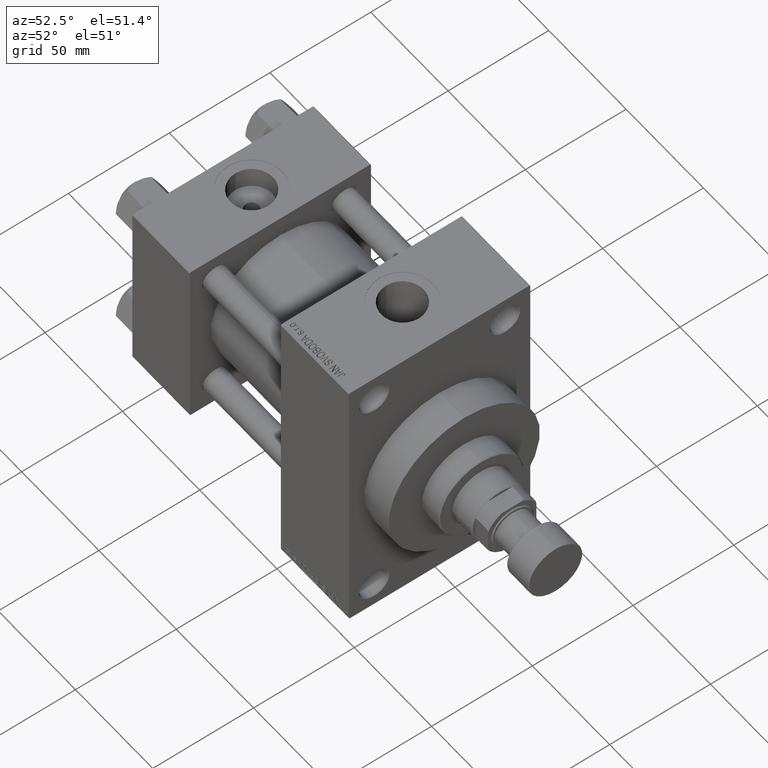
[diagram: clean part render]
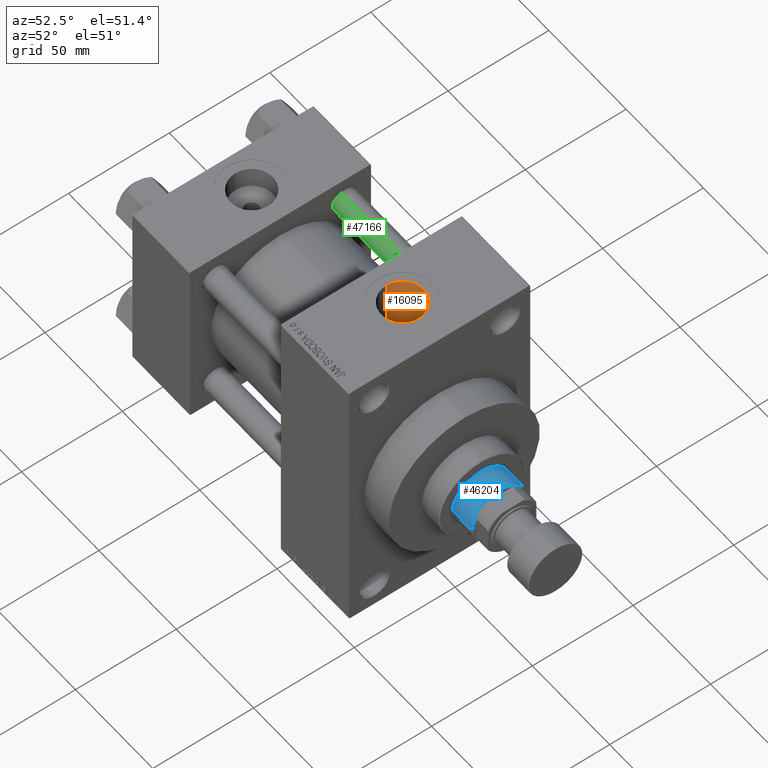
[diagram: same view with three faces highlighted in distinct colors, each labeled with its STEP entity id]
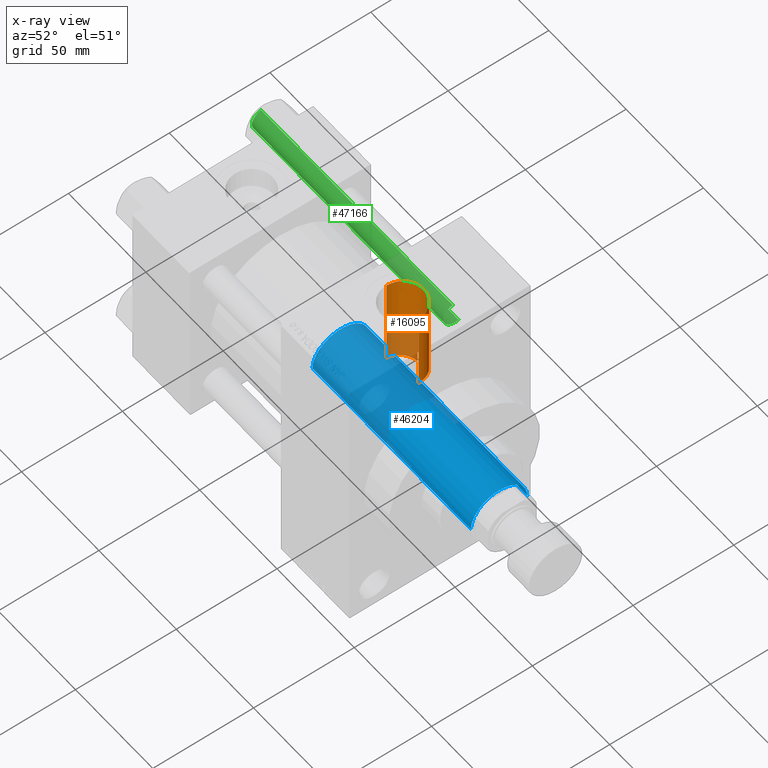
[diagram: x-ray of the same camera — body ghosted, the three highlighted faces saturated]
A machine part, auxiliary view with three faces highlighted in distinct colors.
The next image is the same camera in x-ray (body ghosted, the three faces saturated) — at least one of them is partly hidden behind the body in this view.
Their STEP definitions:

[orange] entity #16095 — the highlighted cylindrical surface (edge-blend (fillet) strip) has radius 10.48 mm, axis along (0, 0, -1).
#855 = VERTEX_POINT ( 'NONE', #46397 ) ;
#899 = CARTESIAN_POINT ( 'NONE',  ( 118.0591099703892723, 10.28399729863217438, 28.18233838691855198 ) ) ;
#1820 = DIRECTION ( 'NONE',  ( 0.000000000000000000, 0.000000000000000000, -1.000000000000000000 ) ) ;
#2198 = VECTOR ( 'NONE', #14858, 1000.000000000000000 ) ;
#2329 = ORIENTED_EDGE ( 'NONE', *, *, #40374, .F. ) ;
#2389 = CARTESIAN_POINT ( 'NONE',  ( 108.4055094269453008, 7.226927296489276564, 23.93349527817645139 ) ) ;
#2634 = CARTESIAN_POINT ( 'NONE',  ( 106.5534232013268507, 4.546234407114488896, 24.58442359052068227 ) ) ;
#3944 = CARTESIAN_POINT ( 'NONE',  ( 126.3830360161806396, 1.648097371455661930, 29.96570276014226408 ) ) ;
#4190 = CARTESIAN_POINT ( 'NONE',  ( 115.5797722390586841, 10.47976684723566265, 28.11006442857998877 ) ) ;
#4447 = CARTESIAN_POINT ( 'NONE',  ( 118.4620306645708467, 10.19511646566076912, 28.21478357702914863 ) ) ;
#4868 = FACE_OUTER_BOUND ( 'NONE', #9265, .T. ) ;
#5247 = VERTEX_POINT ( 'NONE', #38171 ) ;
#5937 = VERTEX_POINT ( 'NONE', #45205 ) ;
#8348 = CIRCLE ( 'NONE', #14759, 10.48000000000000398 ) ;
#8576 = CARTESIAN_POINT ( 'NONE',  ( 105.5199999999999960, 3.061579607129328475E-15, 25.00000000000000000 ) ) ;
#8883 = CYLINDRICAL_SURFACE ( 'NONE', #44569, 10.48000000000000398 ) ;
#9018 = ORIENTED_EDGE ( 'NONE', *, *, #9237, .F. ) ;
#9237 = EDGE_CURVE ( 'NONE', #33973, #37366, #8348, .T. ) ;
#9265 = EDGE_LOOP ( 'NONE', ( #2329, #9018, #17046, #31692, #20513, #19652 ) ) ;
#9309 = CARTESIAN_POINT ( 'NONE',  ( 116.0000000000000000, -1.094803260394251466E-14, 70.79999999999996874 ) ) ;
#9694 = CARTESIAN_POINT ( 'NONE',  ( 106.4364837241044199, 4.294796546401079773, 24.62967549968344017 ) ) ;
#10001 = VERTEX_POINT ( 'NONE', #8576 ) ;
#11478 = CARTESIAN_POINT ( 'NONE',  ( 121.5055286267077435, 8.955395143035861594, 28.63663715154386225 ) ) ;
#11725 = CARTESIAN_POINT ( 'NONE',  ( 123.4361280113390649, 7.429595108124754432, 29.07242469717889222 ) ) ;
#12143 = DIRECTION ( 'NONE',  ( 0.000000000000000000, 0.000000000000000000, -1.000000000000000000 ) ) ;
#14564 = CARTESIAN_POINT ( 'NONE',  ( 112.7400000000000375, 9.960060240781677621, 93.79999999999996874 ) ) ;
#14759 = AXIS2_PLACEMENT_3D ( 'NONE', #9309, #26314, #37909 ) ;
#14858 = DIRECTION ( 'NONE',  ( 0.000000000000000000, 0.000000000000000000, -1.000000000000000000 ) ) ;
#14942 = VECTOR ( 'NONE', #33208, 1000.000000000000000 ) ;
#15246 = CARTESIAN_POINT ( 'NONE',  ( 116.8327597629122323, 10.45516439159307254, 28.11920784241486970 ) ) ;
#15738 = CARTESIAN_POINT ( 'NONE',  ( 114.3405906774044922, 10.38092379675460464, 28.14678245432905257 ) ) ;
#16095 = ADVANCED_FACE ( 'NONE', ( #4868 ), #8883, .F. ) ;
#16958 = CARTESIAN_POINT ( 'NONE',  ( 111.7145022253386344, 9.579591377203493963, 23.09339075464095714 ) ) ;
#17046 = ORIENTED_EDGE ( 'NONE', *, *, #20377, .T. ) ;
#17450 = CARTESIAN_POINT ( 'NONE',  ( 107.6967244621315274, 6.399965487557570221, 24.16798554837829016 ) ) ;
#18248 = EDGE_CURVE ( 'NONE', #5937, #855, #29932, .T. ) ;
#19014 = CARTESIAN_POINT ( 'NONE',  ( 125.9683417730960713, 3.260593319422029346, 29.82480881445975385 ) ) ;
#19652 = ORIENTED_EDGE ( 'NONE', *, *, #35721, .T. ) ;
#19765 = CARTESIAN_POINT ( 'NONE',  ( 113.5317014108506442, 10.21918985817145753, 28.20715556589740558 ) ) ;
#20011 = CARTESIAN_POINT ( 'NONE',  ( 117.2444743077375477, 10.41402026144617921, 28.13455134504983590 ) ) ;
#20195 = DIRECTION ( 'NONE',  ( -1.000000000000000000, 0.000000000000000000, 0.000000000000000000 ) ) ;
#20377 = EDGE_CURVE ( 'NONE', #33973, #10001, #30468, .T. ) ;
#20513 = ORIENTED_EDGE ( 'NONE', *, *, #18248, .F. ) ;
#20754 = CARTESIAN_POINT ( 'NONE',  ( 110.2707649538851058, 8.791964167062978674, 23.40546361773868611 ) ) ;
#21000 = CARTESIAN_POINT ( 'NONE',  ( 107.2168952918916318, 5.742964677340212098, 24.33562597405337158 ) ) ;
#21246 = CARTESIAN_POINT ( 'NONE',  ( 106.9306559456026946, 5.280155339913236823, 24.44112276137722262 ) ) ;
#21731 = CARTESIAN_POINT ( 'NONE',  ( 106.2242790990456740, 3.787004330726786439, 24.71284667523638845 ) ) ;
#21884 = EDGE_CURVE ( 'NONE', #10001, #855, #33182, .T. ) ;
#22063 = CARTESIAN_POINT ( 'NONE',  ( 105.7407124806769758, 2.210995156578866805, 24.90815361058044530 ) ) ;
#23037 = CARTESIAN_POINT ( 'NONE',  ( 112.7400000000000375, 9.960060240781677621, 28.29836037653065262 ) ) ;
#26314 = DIRECTION ( 'NONE',  ( -0.000000000000000000, -0.000000000000000000, -1.000000000000000000 ) ) ;
#26834 = CARTESIAN_POINT ( 'NONE',  ( 124.2306735501210682, 6.500194899328790576, 29.28905352826703279 ) ) ;
#26863 = CARTESIAN_POINT ( 'NONE',  ( 105.5199999999999960, 3.061579607129328475E-15, 25.00000000000000000 ) ) ;
#27081 = CARTESIAN_POINT ( 'NONE',  ( 125.5177326829066118, 4.405705906582507936, 29.67702246902073782 ) ) ;
#27567 = CARTESIAN_POINT ( 'NONE',  ( 122.8380018292597526, 7.984464829307546196, 28.92238598225677748 ) ) ;
#29887 = CARTESIAN_POINT ( 'NONE',  ( 105.8714792709155716, 2.746840284963956158, 24.85421337676989140 ) ) ;
#29932 = LINE ( 'NONE', #14564, #14942 ) ;
#30468 = LINE ( 'NONE', #41031, #2198 ) ;
#30615 = CARTESIAN_POINT ( 'NONE',  ( 124.9382592368621943, 5.487081182378864774, 29.49600040171357307 ) ) ;
#30850 = CARTESIAN_POINT ( 'NONE',  ( 124.4793501314061359, 6.172613663302646714, 29.36019312204046727 ) ) ;
#30880 = CARTESIAN_POINT ( 'NONE',  ( 105.5748675089374160, 1.106412475567419396, 24.97704123077414096 ) ) ;
#31061 = VECTOR ( 'NONE', #12143, 1000.000000000000000 ) ;
#31590 = CARTESIAN_POINT ( 'NONE',  ( 126.0901672462784688, 2.862209008249557929, 29.86591119163860952 ) ) ;
#31692 = ORIENTED_EDGE ( 'NONE', *, *, #21884, .T. ) ;
#32826 = CARTESIAN_POINT ( 'NONE',  ( 108.2191150461718792, 7.025825097695094890, 23.99341311413245847 ) ) ;
#33182 = B_SPLINE_CURVE_WITH_KNOTS ( 'NONE', 3,
 ( #26863, #45471, #49749, #30880, #41200, #22063, #29887, #45216, #21731, #9694, #2634, #21246, #21000, #17450, #44138, #32826, #2389, #40128, #47657, #20754, #36856, #16958, #48152, #48664 ),
 .UNSPECIFIED., .F., .F.,
 ( 4, 2, 2, 2, 2, 2, 2, 2, 2, 2, 2, 4 ),
 ( 0.03315293716445248673, 0.03398143856659530115, 0.03480993996873811558, 0.03646694277302374443, 0.03729544417516655191, 0.03812394557730936634, 0.03978094838159499519, 0.04060944978373780961, 0.04143795118588062404, 0.04309495399016624595, 0.04475195679445187480, 0.04640895959873749671 ),
 .UNSPECIFIED. ) ;
#33208 = DIRECTION ( 'NONE',  ( 0.000000000000000000, 0.000000000000000000, -1.000000000000000000 ) ) ;
#33270 = CARTESIAN_POINT ( 'NONE',  ( 126.4800000000000040, -9.664602758436087591E-15, 70.79999999999996874 ) ) ;
#33973 = VERTEX_POINT ( 'NONE', #37886 ) ;
#34792 = LINE ( 'NONE', #46102, #31061 ) ;
#35129 = CARTESIAN_POINT ( 'NONE',  ( 120.7931686517055709, 9.355930520045824039, 28.50576369173083435 ) ) ;
#35721 = EDGE_CURVE ( 'NONE', #5937, #5247, #36841, .T. ) ;
#36841 = B_SPLINE_CURVE_WITH_KNOTS ( 'NONE', 3,
 ( #23037, #19765, #15738, #4190, #38916, #15246, #20011, #899, #4447, #46190, #45941, #35129, #11478, #27567, #11725, #26834, #30850, #30615, #42915, #27081, #39393, #19014, #31590, #3944, #42422, #46932 ),
 .UNSPECIFIED., .F., .F.,
 ( 4, 2, 2, 2, 2, 2, 2, 2, 2, 2, 2, 2, 4 ),
 ( 0.000000000000000000, 0.002478973229448049737, 0.003718459844172074605, 0.004957946458896099473, 0.006197433073620124341, 0.007436919688344149210, 0.009915892917792157313, 0.01239486614724016542, 0.01363435276196416600, 0.01487383937668817005, 0.01611332599141217237, 0.01735281260613617815, 0.01983178583558416891 ),
 .UNSPECIFIED. ) ;
#36856 = CARTESIAN_POINT ( 'NONE',  ( 110.7334908428740476, 9.077331294423922614, 23.29539276492242905 ) ) ;
#37366 = VERTEX_POINT ( 'NONE', #33270 ) ;
#37886 = CARTESIAN_POINT ( 'NONE',  ( 105.5199999999999960, -1.094803260394251466E-14, 70.79999999999996874 ) ) ;
#37909 = DIRECTION ( 'NONE',  ( 1.000000000000000000, 0.000000000000000000, 0.000000000000000000 ) ) ;
#38171 = CARTESIAN_POINT ( 'NONE',  ( 126.4800000000000040, 3.673940397618681979E-15, 30.00000000000000000 ) ) ;
#38916 = CARTESIAN_POINT ( 'NONE',  ( 116.0002282757462808, 10.48827684731155330, 28.10687390860659107 ) ) ;
#39393 = CARTESIAN_POINT ( 'NONE',  ( 125.6823871826148178, 4.031213830330547587, 29.73045584359391214 ) ) ;
#40128 = CARTESIAN_POINT ( 'NONE',  ( 108.9846989220167615, 7.804704455460329093, 23.75393200882464484 ) ) ;
#40374 = EDGE_CURVE ( 'NONE', #37366, #5247, #34792, .T. ) ;
#41031 = CARTESIAN_POINT ( 'NONE',  ( 105.5199999999999960, -1.094803260394251466E-14, 93.79999999999996874 ) ) ;
#41200 = CARTESIAN_POINT ( 'NONE',  ( 105.6081712893590776, 1.384942614456408760, 24.96313457725881335 ) ) ;
#42422 = CARTESIAN_POINT ( 'NONE',  ( 126.4799999999999756, 0.8289108953755167652, 29.99999999999999289 ) ) ;
#42915 = CARTESIAN_POINT ( 'NONE',  ( 125.1456671303457568, 5.133639323080407380, 29.55979794353439871 ) ) ;
#43580 = CARTESIAN_POINT ( 'NONE',  ( 116.0000000000000000, -1.094803260394251466E-14, 93.79999999999996874 ) ) ;
#44138 = CARTESIAN_POINT ( 'NONE',  ( 107.8651253838970376, 6.612730445768647769, 24.11053477674085954 ) ) ;
#44569 = AXIS2_PLACEMENT_3D ( 'NONE', #43580, #1820, #20195 ) ;
#45205 = CARTESIAN_POINT ( 'NONE',  ( 112.7400000000000375, 9.960060240781677621, 28.29836037653065262 ) ) ;
#45216 = CARTESIAN_POINT ( 'NONE',  ( 106.1284384137638739, 3.529601645624522277, 24.75098332906153331 ) ) ;
#45471 = CARTESIAN_POINT ( 'NONE',  ( 105.5200000000000387, 0.2761730040892637628, 25.00000000000000711 ) ) ;
#45941 = CARTESIAN_POINT ( 'NONE',  ( 119.6536175153769790, 9.831116643405007238, 28.34390843602811927 ) ) ;
#46102 = CARTESIAN_POINT ( 'NONE',  ( 126.4800000000000040, -9.664602758436087591E-15, 93.79999999999996874 ) ) ;
#46190 = CARTESIAN_POINT ( 'NONE',  ( 119.2590511626586647, 9.968980903825993778, 28.29547369785728250 ) ) ;
#46397 = CARTESIAN_POINT ( 'NONE',  ( 112.7400000000000375, 9.960060240781677621, 22.93026820601974691 ) ) ;
#46932 = CARTESIAN_POINT ( 'NONE',  ( 126.4800000000000040, 3.673940397618681979E-15, 30.00000000000000000 ) ) ;
#47657 = CARTESIAN_POINT ( 'NONE',  ( 109.3963603562479676, 8.155655190358228168, 23.63471280748279924 ) ) ;
#48152 = CARTESIAN_POINT ( 'NONE',  ( 112.2204695759653958, 9.790014162604533610, 23.00412993180228227 ) ) ;
#48664 = CARTESIAN_POINT ( 'NONE',  ( 112.7400000000000375, 9.960060240781677621, 22.93026820601974691 ) ) ;
#49749 = CARTESIAN_POINT ( 'NONE',  ( 105.5308991753443166, 0.5526879277622503972, 24.99542504668380616 ) ) ;

[blue] entity #46204 — the highlighted cylindrical surface (edge-blend (fillet) strip) has radius 14 mm, axis along (-1, 0, 0).
#220 = VERTEX_POINT ( 'NONE', #33513 ) ;
#2365 = DIRECTION ( 'NONE',  ( -0.000000000000000000, -0.000000000000000000, -1.000000000000000000 ) ) ;
#2947 = AXIS2_PLACEMENT_3D ( 'NONE', #20431, #39804, #28730 ) ;
#4588 = CARTESIAN_POINT ( 'NONE',  ( 0.000000000000000000, 0.000000000000000000, 39.00000000000000000 ) ) ;
#7128 = EDGE_CURVE ( 'NONE', #49085, #20622, #33298, .T. ) ;
#8119 = ORIENTED_EDGE ( 'NONE', *, *, #20314, .T. ) ;
#9041 = CARTESIAN_POINT ( 'NONE',  ( 14.00000000000000178, 1.714505518806294835E-15, 142.0000000000000000 ) ) ;
#10631 = ORIENTED_EDGE ( 'NONE', *, *, #44782, .F. ) ;
#10679 = ORIENTED_EDGE ( 'NONE', *, *, #7128, .T. ) ;
#12362 = DIRECTION ( 'NONE',  ( 1.000000000000000000, 0.000000000000000000, 0.000000000000000000 ) ) ;
#13292 = DIRECTION ( 'NONE',  ( -0.000000000000000000, -0.000000000000000000, -1.000000000000000000 ) ) ;
#16453 = VERTEX_POINT ( 'NONE', #29170 ) ;
#17314 = CARTESIAN_POINT ( 'NONE',  ( -14.00000000000000178, 0.000000000000000000, 39.00000000000000000 ) ) ;
#17679 = AXIS2_PLACEMENT_3D ( 'NONE', #4588, #42322, #12362 ) ;
#20314 = EDGE_CURVE ( 'NONE', #220, #49085, #24635, .T. ) ;
#20431 = CARTESIAN_POINT ( 'NONE',  ( 0.000000000000000000, 0.000000000000000000, 141.5000000000000000 ) ) ;
#20622 = VERTEX_POINT ( 'NONE', #17314 ) ;
#20706 = AXIS2_PLACEMENT_3D ( 'NONE', #30405, #23073, #38198 ) ;
#21708 = CARTESIAN_POINT ( 'NONE',  ( -14.00000000000000178, 0.000000000000000000, 142.0000000000000000 ) ) ;
#22510 = CIRCLE ( 'NONE', #17679, 14.00000000000000178 ) ;
#22939 = CARTESIAN_POINT ( 'NONE',  ( -14.00000000000000178, 0.000000000000000000, 141.5000000000000000 ) ) ;
#23073 = DIRECTION ( 'NONE',  ( -0.000000000000000000, -0.000000000000000000, -1.000000000000000000 ) ) ;
#23135 = EDGE_CURVE ( 'NONE', #20622, #16453, #22510, .T. ) ;
#23290 = EDGE_LOOP ( 'NONE', ( #10631, #8119, #10679, #36490 ) ) ;
#24635 = CIRCLE ( 'NONE', #2947, 14.00000000000000178 ) ;
#26868 = FACE_OUTER_BOUND ( 'NONE', #23290, .T. ) ;
#28730 = DIRECTION ( 'NONE',  ( 1.000000000000000000, 0.000000000000000000, 0.000000000000000000 ) ) ;
#29170 = CARTESIAN_POINT ( 'NONE',  ( 14.00000000000000178, 1.714505518806294835E-15, 39.00000000000000000 ) ) ;
#30280 = VECTOR ( 'NONE', #13292, 1000.000000000000000 ) ;
#30405 = CARTESIAN_POINT ( 'NONE',  ( 0.000000000000000000, 0.000000000000000000, 142.0000000000000000 ) ) ;
#31146 = CYLINDRICAL_SURFACE ( 'NONE', #20706, 14.00000000000000178 ) ;
#31678 = LINE ( 'NONE', #9041, #30280 ) ;
#33298 = LINE ( 'NONE', #21708, #43604 ) ;
#33513 = CARTESIAN_POINT ( 'NONE',  ( 14.00000000000000178, 1.714505518806294835E-15, 141.5000000000000000 ) ) ;
#36490 = ORIENTED_EDGE ( 'NONE', *, *, #23135, .T. ) ;
#38198 = DIRECTION ( 'NONE',  ( -1.000000000000000000, 0.000000000000000000, 0.000000000000000000 ) ) ;
#39804 = DIRECTION ( 'NONE',  ( 0.000000000000000000, 0.000000000000000000, -1.000000000000000000 ) ) ;
#42322 = DIRECTION ( 'NONE',  ( 0.000000000000000000, 0.000000000000000000, 1.000000000000000000 ) ) ;
#43604 = VECTOR ( 'NONE', #2365, 1000.000000000000000 ) ;
#44782 = EDGE_CURVE ( 'NONE', #220, #16453, #31678, .T. ) ;
#46204 = ADVANCED_FACE ( 'NONE', ( #26868 ), #31146, .T. ) ;
#49085 = VERTEX_POINT ( 'NONE', #22939 ) ;

[green] entity #47166 — the highlighted cylindrical surface (edge-blend (fillet) strip) has radius 6 mm, axis along (-1, -0, 0).
#782 = ORIENTED_EDGE ( 'NONE', *, *, #47395, .T. ) ;
#1439 = CYLINDRICAL_SURFACE ( 'NONE', #44803, 6.000000000000000888 ) ;
#2092 = ORIENTED_EDGE ( 'NONE', *, *, #28309, .F. ) ;
#2716 = CARTESIAN_POINT ( 'NONE',  ( -6.000000000000000888, 0.000000000000000000, 125.0000000000000000 ) ) ;
#6504 = EDGE_CURVE ( 'NONE', #31907, #11817, #43573, .T. ) ;
#8510 = CARTESIAN_POINT ( 'NONE',  ( 6.000000000000000888, 7.347880794884120722E-16, 125.0000000000000000 ) ) ;
#9610 = CIRCLE ( 'NONE', #44132, 6.000000000000000888 ) ;
#11817 = VERTEX_POINT ( 'NONE', #31423 ) ;
#13002 = CARTESIAN_POINT ( 'NONE',  ( 0.000000000000000000, 0.000000000000000000, 125.0000000000000000 ) ) ;
#13189 = VERTEX_POINT ( 'NONE', #22290 ) ;
#14934 = VECTOR ( 'NONE', #37441, 1000.000000000000000 ) ;
#15393 = DIRECTION ( 'NONE',  ( -0.000000000000000000, -0.000000000000000000, 1.000000000000000000 ) ) ;
#17379 = EDGE_LOOP ( 'NONE', ( #2092, #782, #31596, #25365 ) ) ;
#21856 = AXIS2_PLACEMENT_3D ( 'NONE', #49627, #15393, #38068 ) ;
#22290 = CARTESIAN_POINT ( 'NONE',  ( -6.000000000000000888, 0.000000000000000000, 124.5000000000000000 ) ) ;
#24082 = LINE ( 'NONE', #8510, #37074 ) ;
#24327 = FACE_OUTER_BOUND ( 'NONE', #17379, .T. ) ;
#25365 = ORIENTED_EDGE ( 'NONE', *, *, #6504, .T. ) ;
#27303 = DIRECTION ( 'NONE',  ( 0.000000000000000000, 0.000000000000000000, -1.000000000000000000 ) ) ;
#28309 = EDGE_CURVE ( 'NONE', #33686, #11817, #24082, .T. ) ;
#28360 = DIRECTION ( 'NONE',  ( -0.000000000000000000, -0.000000000000000000, -1.000000000000000000 ) ) ;
#31423 = CARTESIAN_POINT ( 'NONE',  ( 6.000000000000000888, 7.347880794884120722E-16, 0.4999999999999865663 ) ) ;
#31596 = ORIENTED_EDGE ( 'NONE', *, *, #38736, .T. ) ;
#31888 = DIRECTION ( 'NONE',  ( -1.000000000000000000, 0.000000000000000000, 0.000000000000000000 ) ) ;
#31907 = VERTEX_POINT ( 'NONE', #40449 ) ;
#33686 = VERTEX_POINT ( 'NONE', #46226 ) ;
#37074 = VECTOR ( 'NONE', #28360, 1000.000000000000000 ) ;
#37441 = DIRECTION ( 'NONE',  ( -0.000000000000000000, -0.000000000000000000, -1.000000000000000000 ) ) ;
#38068 = DIRECTION ( 'NONE',  ( 1.000000000000000000, 0.000000000000000000, 0.000000000000000000 ) ) ;
#38652 = DIRECTION ( 'NONE',  ( 1.000000000000000000, 0.000000000000000000, 0.000000000000000000 ) ) ;
#38736 = EDGE_CURVE ( 'NONE', #13189, #31907, #41708, .T. ) ;
#40449 = CARTESIAN_POINT ( 'NONE',  ( -6.000000000000000888, 0.000000000000000000, 0.4999999999999865663 ) ) ;
#41708 = LINE ( 'NONE', #2716, #14934 ) ;
#43214 = DIRECTION ( 'NONE',  ( -0.000000000000000000, -0.000000000000000000, -1.000000000000000000 ) ) ;
#43573 = CIRCLE ( 'NONE', #21856, 6.000000000000000888 ) ;
#44132 = AXIS2_PLACEMENT_3D ( 'NONE', #46421, #27303, #38652 ) ;
#44803 = AXIS2_PLACEMENT_3D ( 'NONE', #13002, #43214, #31888 ) ;
#46226 = CARTESIAN_POINT ( 'NONE',  ( 6.000000000000000888, 7.347880794884120722E-16, 124.5000000000000000 ) ) ;
#46421 = CARTESIAN_POINT ( 'NONE',  ( 0.000000000000000000, 0.000000000000000000, 124.5000000000000000 ) ) ;
#47166 = ADVANCED_FACE ( 'NONE', ( #24327 ), #1439, .T. ) ;
#47395 = EDGE_CURVE ( 'NONE', #33686, #13189, #9610, .T. ) ;
#49627 = CARTESIAN_POINT ( 'NONE',  ( 0.000000000000000000, 0.000000000000000000, 0.4999999999999865663 ) ) ;